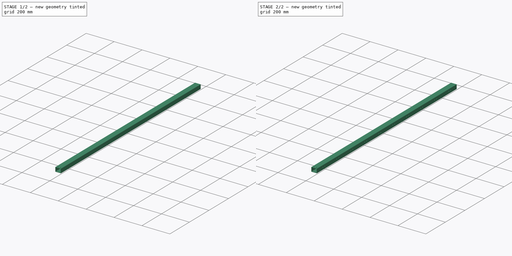
[diagram: build sequence overview — one tinted view per stage of 2, left to right]
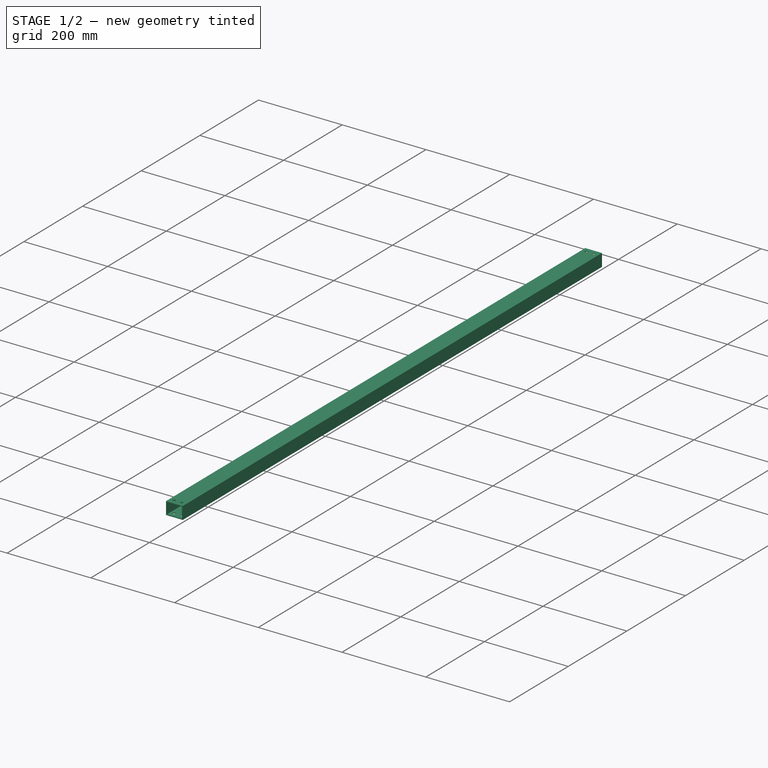
[diagram: stage 1 of 2 — iso view after this stage's code; geometry added in this stage tinted green]
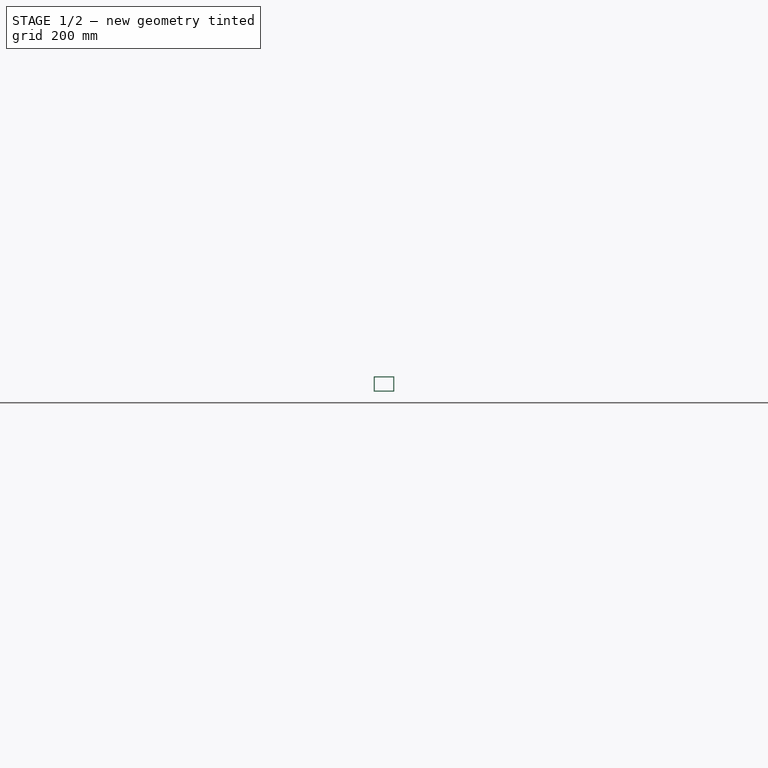
[diagram: stage 1 of 2 — front view after this stage's code; geometry added in this stage tinted green]
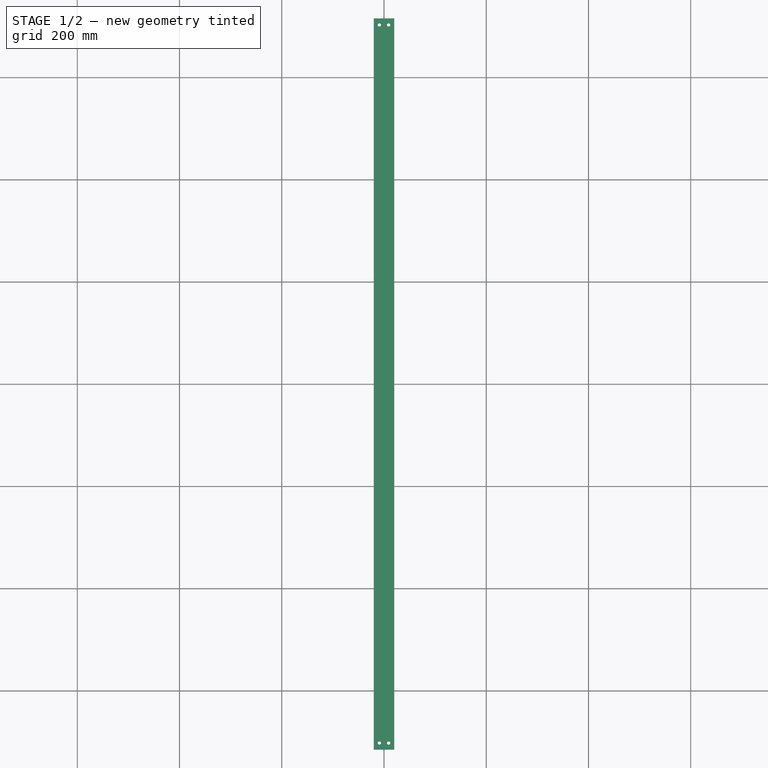
[diagram: stage 1 of 2 — top view after this stage's code; geometry added in this stage tinted green]
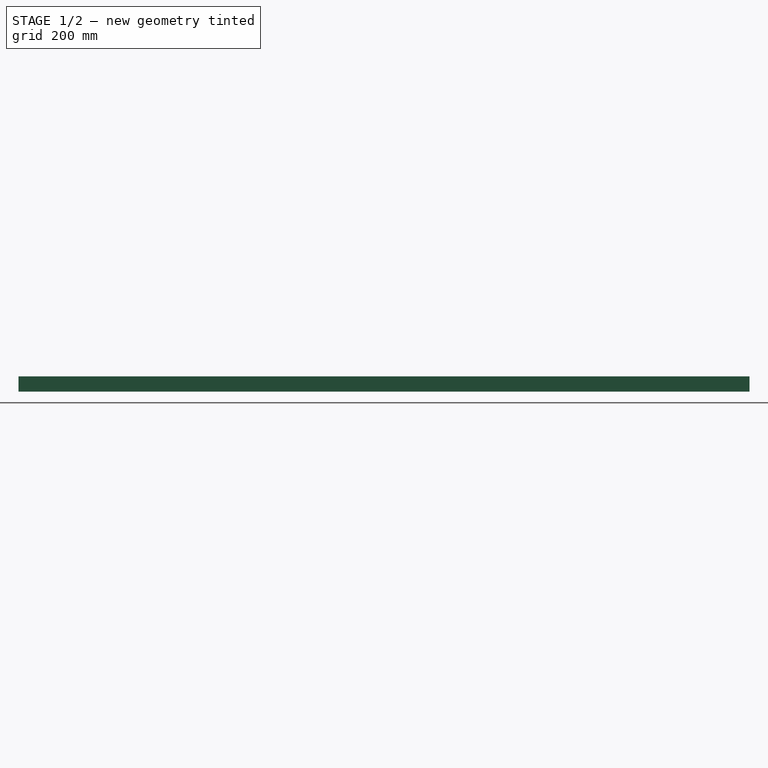
[diagram: stage 1 of 2 — right view after this stage's code; geometry added in this stage tinted green]
FCSTD DOCUMENT  (FreeCAD 0.15R4671 (Git))
Label: Tube_40x30x2_L1430
License: All rights reserved
LicenseURL: http://en.wikipedia.org/wiki/All_rights_reserved
objects: Sketcher::SketchObject×3, PartDesign::Pocket×2, PartDesign::Pad×1, PartDesign::LinearPattern×1
note: 10 computed .brp shape members not serialized (recipe doc carries the construction recipe); baked Part::Feature solids carry a one-line shape summary decoded from their .brp

FEATURE [Sketcher::SketchObject] Sketch
  Placement = pos=(0,0,0) rot=(1,0,0;1.5708rad)
  sketch-geometry (8):
    g0: LineSegment StartX=-20 StartY=15 StartZ=0 EndX=20 EndY=15 EndZ=0
    g1: LineSegment StartX=20 StartY=15 StartZ=0 EndX=20 EndY=-15 EndZ=0
    g2: LineSegment StartX=20 StartY=-15 StartZ=0 EndX=-20 EndY=-15 EndZ=0
    g3: LineSegment StartX=-20 StartY=-15 StartZ=0 EndX=-20 EndY=15 EndZ=0
    g4: LineSegment StartX=-18 StartY=13 StartZ=0 EndX=18 EndY=13 EndZ=0
    g5: LineSegment StartX=18 StartY=13 StartZ=0 EndX=18 EndY=-13 EndZ=0
    g6: LineSegment StartX=18 StartY=-13 StartZ=0 EndX=-18 EndY=-13 EndZ=0
    g7: LineSegment StartX=-18 StartY=-13 StartZ=0 EndX=-18 EndY=13 EndZ=0
  constraints (24):
    c: Coincident(g0,g1)
    c: Coincident(g1,g2)
    c: Coincident(g2,g3)
    c: Coincident(g3,g0)
    c: Horizontal(g0)
    c: Horizontal(g2)
    c: Vertical(g1)
    c: Vertical(g3)
    c: Symmetric(g0,g0,g-2)
    c: Symmetric(g0,g1,g-1)
    c: Distance(g0) = 40
    c: Distance(g3) = 30
    c: Coincident(g4,g5)
    c: Coincident(g5,g6)
    c: Coincident(g6,g7)
    c: Coincident(g7,g4)
    c: Horizontal(g4)
    c: Horizontal(g6)
    c: Vertical(g5)
    c: Vertical(g7)
    c: Symmetric(g4,g4,g-2)
    c: Symmetric(g4,g6,g-1)
    c: DistanceY(g0,g4) = -2
    c: DistanceX(g0,g4) = 2
FEATURE [PartDesign::Pad] Pad
  Length = 1430
  Length2 = 100
  Midplane = true
  Placement = pos=(0,0,0) rot=(1,0,0;1.5708rad)
  Sketch = -> Sketch
  Type = 0
FEATURE [Sketcher::SketchObject] Sketch001
  ExternalGeometry = -> [Pad]
  Placement = pos=(0,0,15) rot=(0,0,1;3.14159rad)
  Support = -> Pad [Face1]
  sketch-geometry (4):
    g0: Circle CenterX=-9 CenterY=-702.5 CenterZ=0 NormalX=0 NormalY=0 NormalZ=1 Radius=3.3
    g1: Circle CenterX=9 CenterY=-702.5 CenterZ=0 NormalX=0 NormalY=0 NormalZ=1 Radius=3.3
    g2: Circle CenterX=-9 CenterY=702.5 CenterZ=0 NormalX=0 NormalY=0 NormalZ=1 Radius=3.3
    g3: Circle CenterX=9 CenterY=702.5 CenterZ=0 NormalX=0 NormalY=0 NormalZ=1 Radius=3.3
  constraints (9):
    c: Radius(g0) = 3.3
    c: Equal(g0,g1)
    c: Equal(g0,g2)
    c: Symmetric(g0,g1,g-2)
    c: Symmetric(g0,g2,g-1)
    c: DistanceY(g2,g-3) = 12.5
    c: Symmetric(g3,g2,g-2)
    c: Equal(g2,g3)
    c: DistanceX(g2,g3) = 18
FEATURE [PartDesign::Pocket] Pocket
  Length = 5
  Placement = pos=(0,0,0) rot=(1,0,0;1.5708rad)
  Sketch = -> Sketch001
  Type = 1
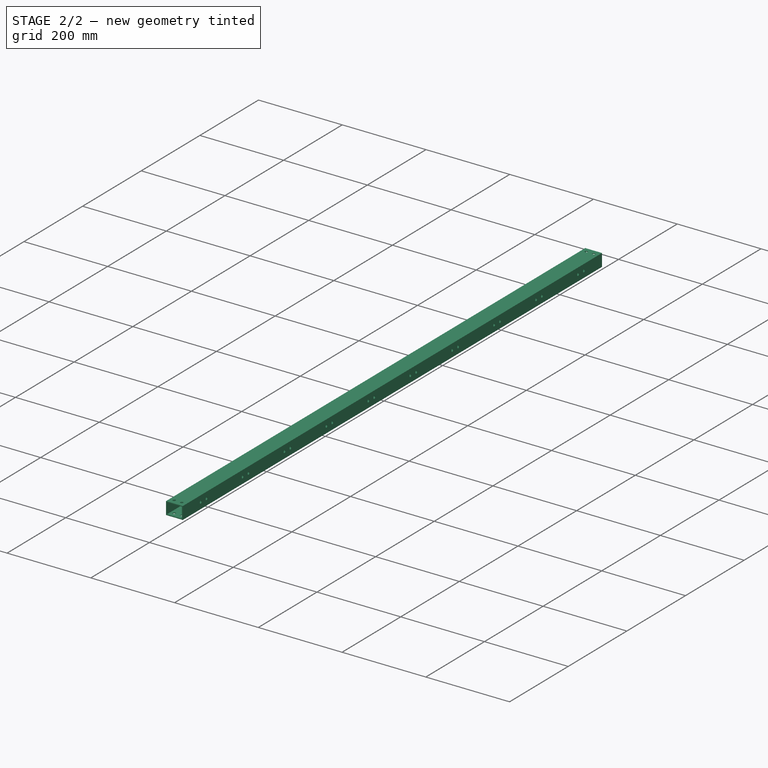
[diagram: stage 2 of 2 — iso view after this stage's code; geometry added in this stage tinted green]
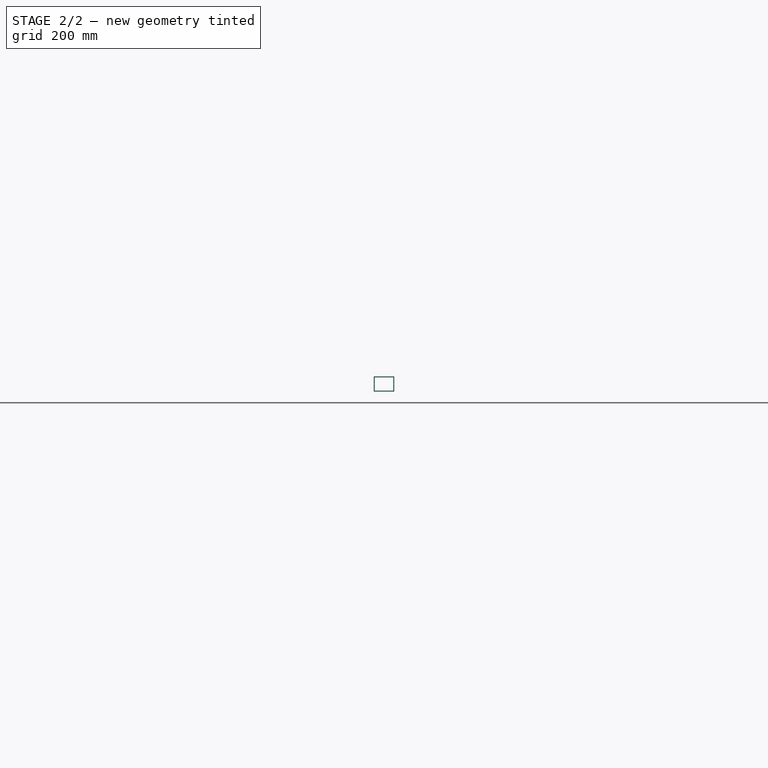
[diagram: stage 2 of 2 — front view after this stage's code; geometry added in this stage tinted green]
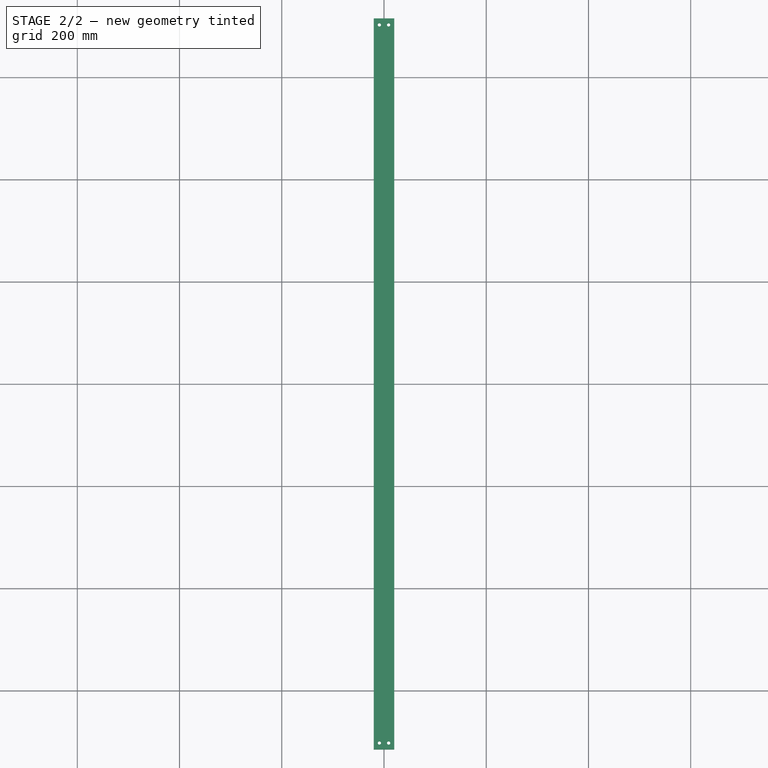
[diagram: stage 2 of 2 — top view after this stage's code; geometry added in this stage tinted green]
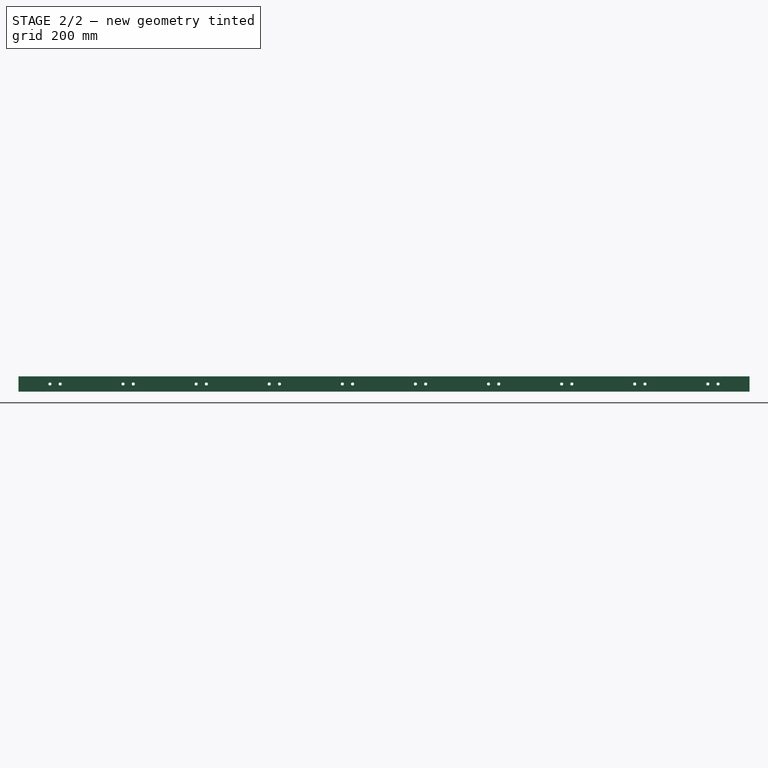
[diagram: stage 2 of 2 — right view after this stage's code; geometry added in this stage tinted green]
FEATURE [Sketcher::SketchObject] Sketch002
  ExternalGeometry = -> [Pocket]
  Placement = pos=(20,0,0) rot=(0.707107,0,0.707107;3.14159rad)
  Support = -> Pocket [Face5]
  sketch-geometry (4):
    g0: Circle CenterX=0 CenterY=653.5 CenterZ=0 NormalX=0 NormalY=0 NormalZ=1 Radius=3.05
    g1: Circle CenterX=0 CenterY=633.5 CenterZ=0 NormalX=0 NormalY=0 NormalZ=1 Radius=3.05
    g2: LineSegment [constr] StartX=0 StartY=653.5 StartZ=0 EndX=0 EndY=643.5 EndZ=0
    g3: LineSegment [constr] StartX=0 StartY=643.5 StartZ=0 EndX=0 EndY=633.5 EndZ=0
  constraints (11):
    c: Radius(g0) = 3.05
    c: Equal(g0,g1)
    c: PointOnObject(g0,g-2)
    c: PointOnObject(g1,g-2)
    c: Coincident(g2,g0)
    c: Coincident(g3,g2)
    c: Coincident(g3,g1)
    c: Equal(g2,g3)
    c: Vertical(g2)
    c: DistanceY(g0,g1) = -20
    c: DistanceY(g2,g-3) = 71.5
FEATURE [PartDesign::Pocket] Pocket001
  Length = 5
  Placement = pos=(0,0,0) rot=(1,0,0;1.5708rad)
  Sketch = -> Sketch002
  Type = 1
FEATURE [PartDesign::LinearPattern] LinearPattern
  Direction = -> Sketch002 [V_Axis]
  Length = 1287
  Occurrences = 10
  Originals = -> [Pocket001]
  Placement = pos=(0,0,0) rot=(1,0,0;1.5708rad)
  Reversed = true
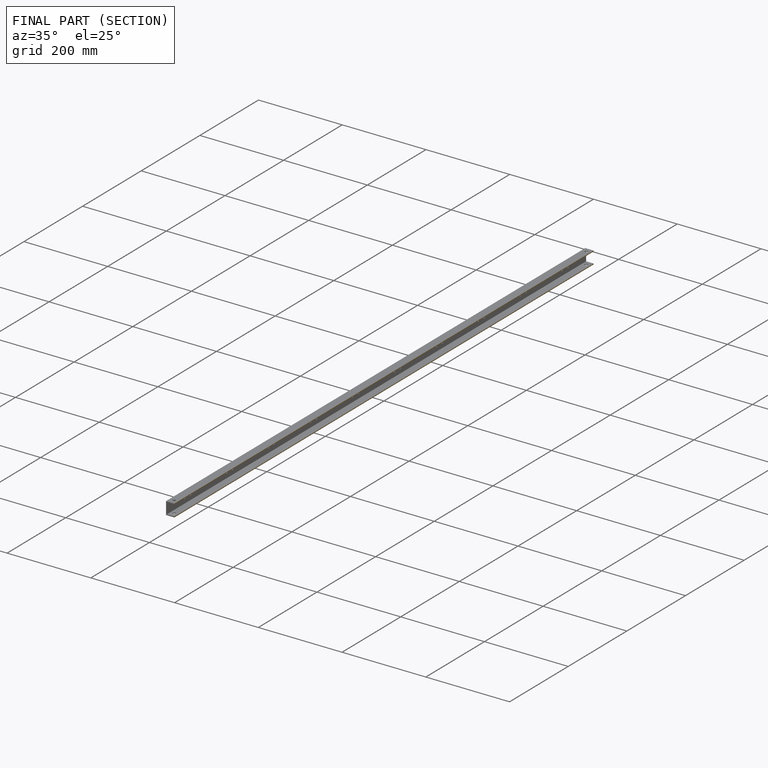
[diagram: finished part — half-section view (interior)]
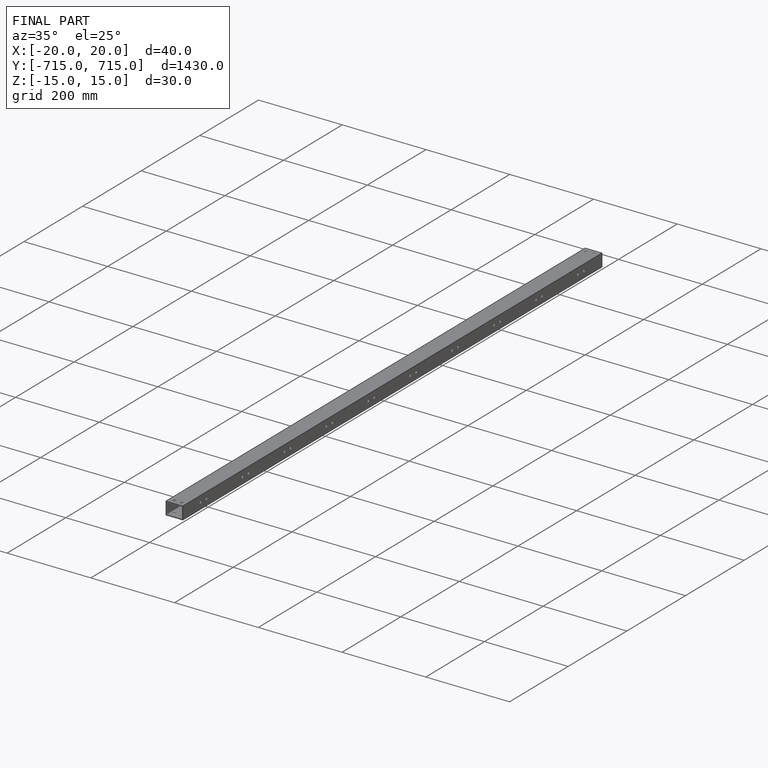
[diagram: finished part — iso view with bounding-box wireframe]
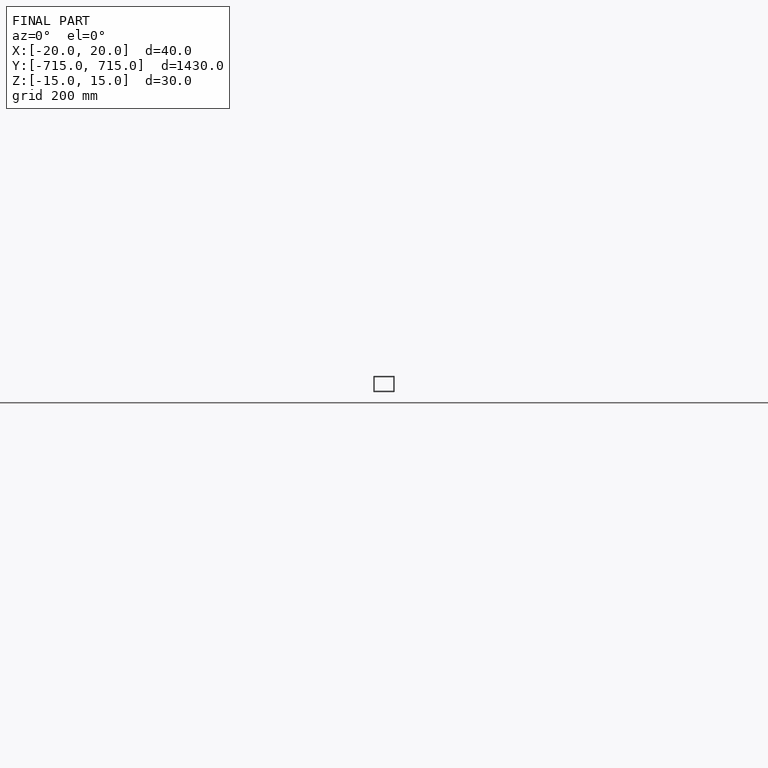
[diagram: finished part — front view with bounding-box wireframe]
